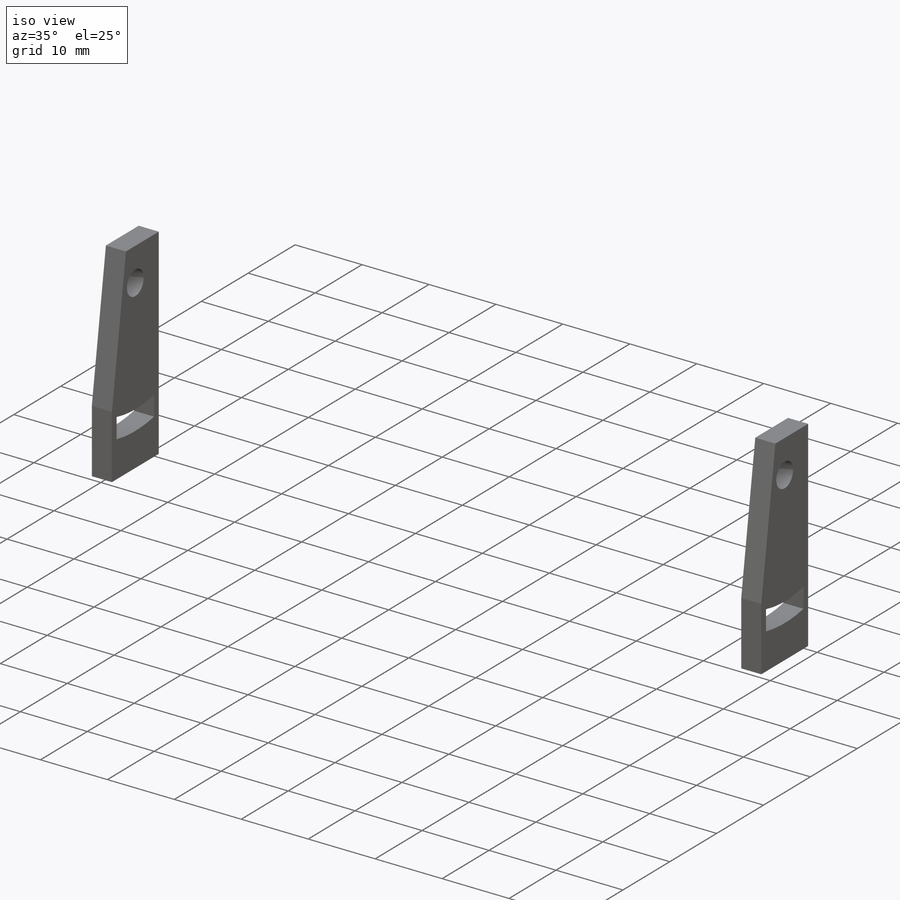
[diagram: iso view]
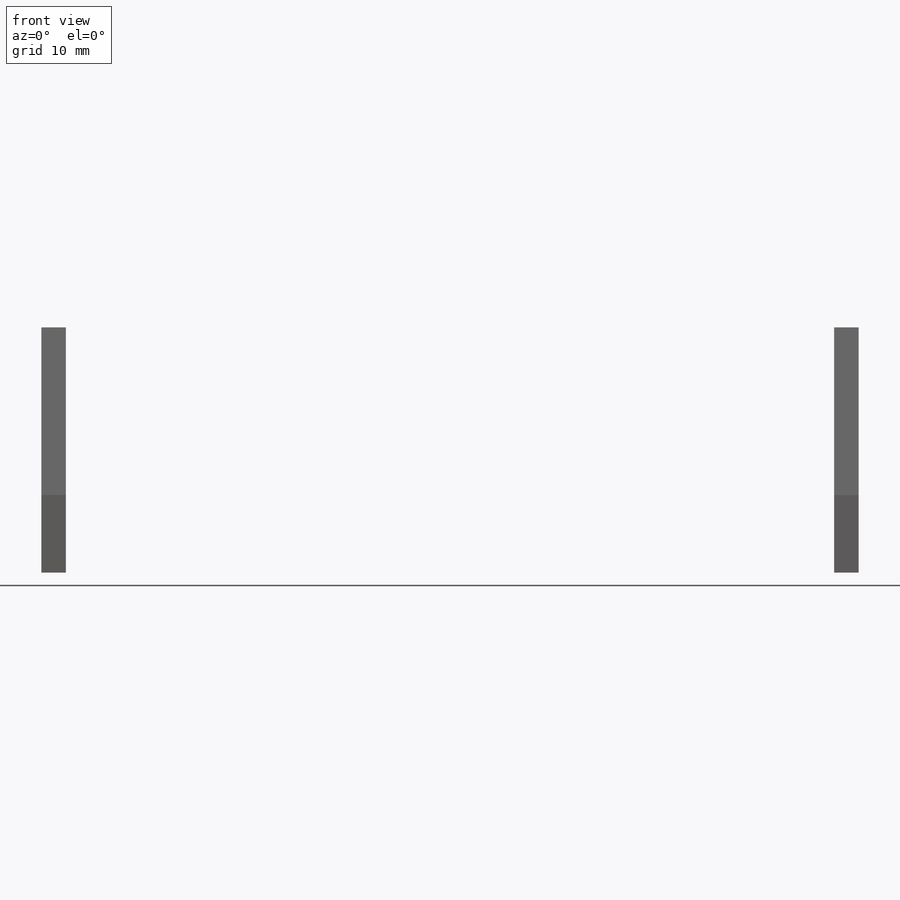
[diagram: front view]
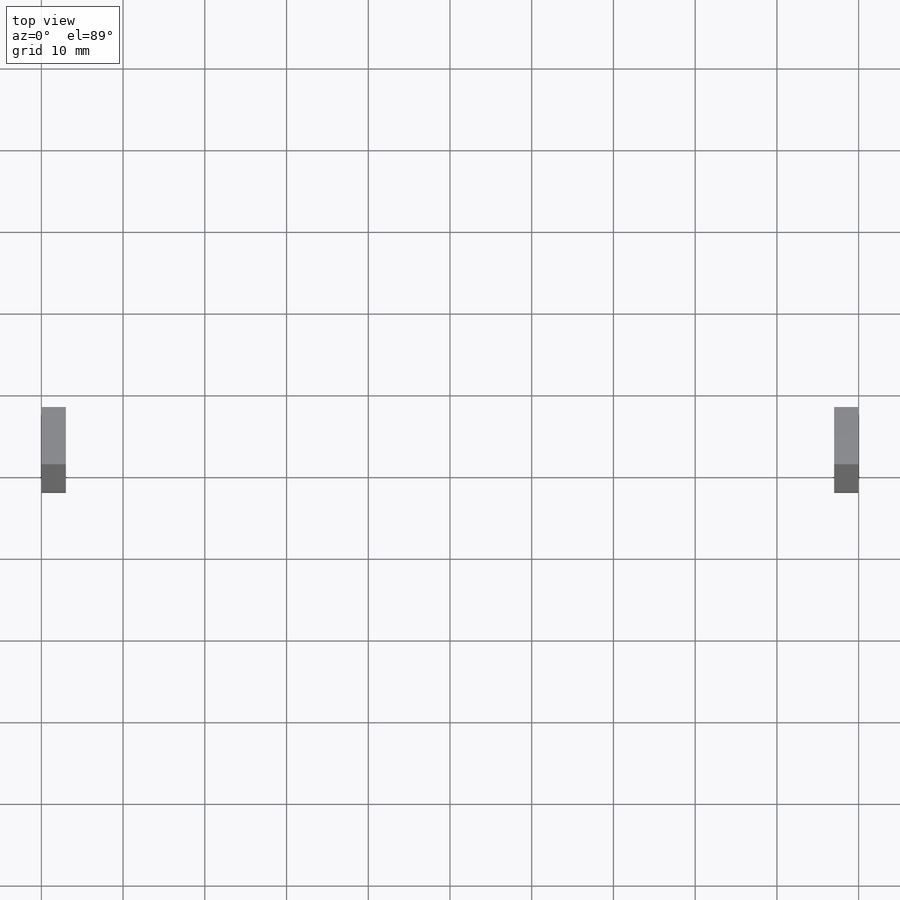
[diagram: top view]
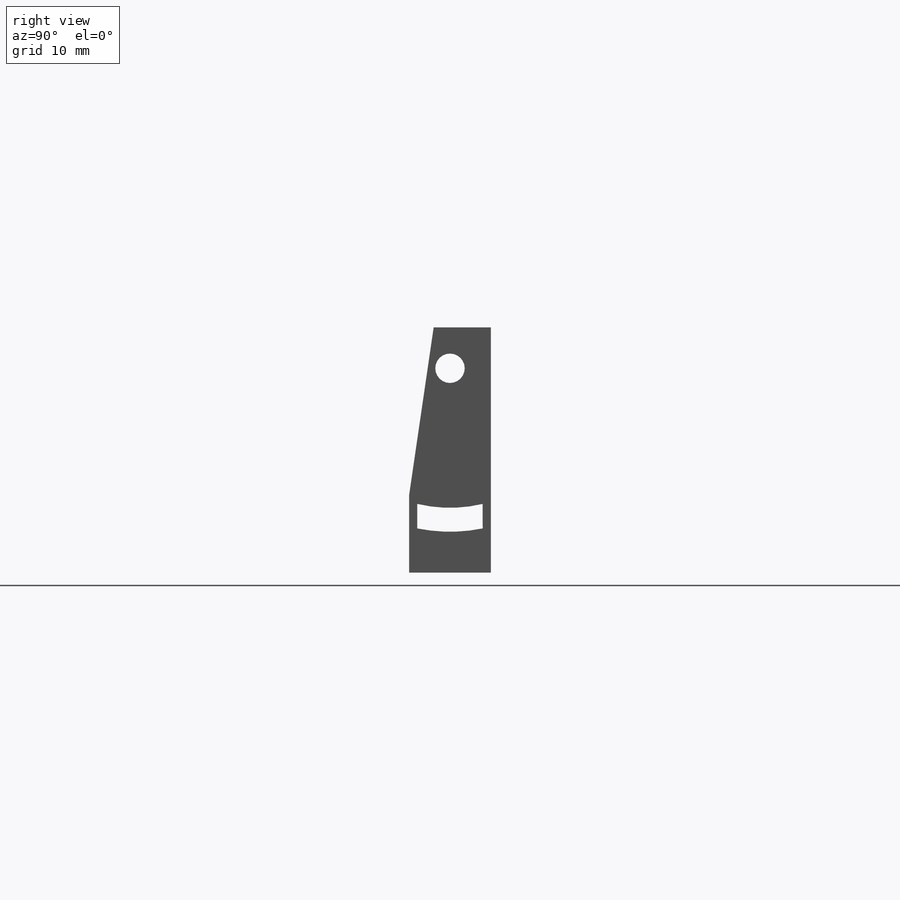
[diagram: right view]
SOLIDWORKS PART (.sldprt)
format: sldprt  version: not decoded by parser v0  size: 179,200 bytes
history: native  units: mm
features: sketch x5, cut_extrude x4, material x1, extrude x1 (+12 scaffold rows collapsed)
feature tree (23):
  scaffold x12  (default folders/planes/origin — collapsed)
  material  "Material <not specified>"
  sketch  "Sketch1"  dims[D1=30.0mm D2=10.0mm]
  extrude  "Boss-Extrude1"  Depth=100mm
  sketch  "Sketch2"  dims[D1=3.0mm D2=3.0mm]
  cut_extrude  "Cut-Extrude1"  Depth=100mm
  sketch  "Sketch3"  dims[D1=5.0mm D2=5.0mm D3=5.0mm]
  cut_extrude  "Cut-Extrude2"  Depth=100mm
  sketch  "Sketch4"  dims[D3=20.0mm D1=1.0mm D2=1.0mm D4=1.0mm D5=~1.002435mm D6=3.0mm]
  cut_extrude  "Cut-Extrude3"  Depth=100mm
  sketch  "Sketch5"  dims[c1.D1=3.0mm c1.D2=10.0mm c2.D1=3.0mm c2.D2=9.5mm]
  cut_extrude  "Cut-Extrude5"  Depth=100mm
decode coverage: 10 of 10 modeling features carry decoded parameters
note: ~ marks probable driven/reference dimensions
note: suppression state not decoded; provenance and decode notes live in map.json
